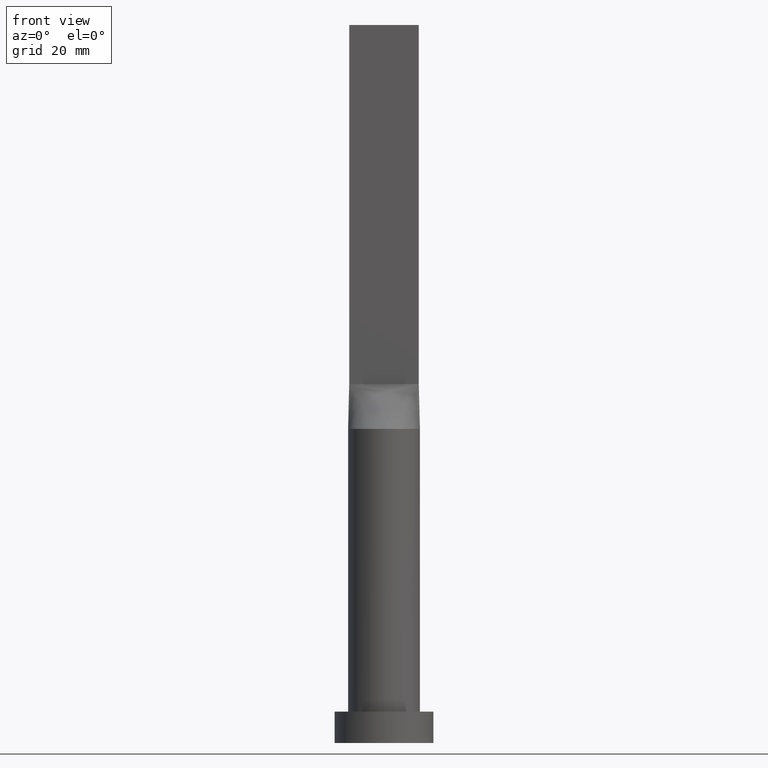
[diagram: clean part render]
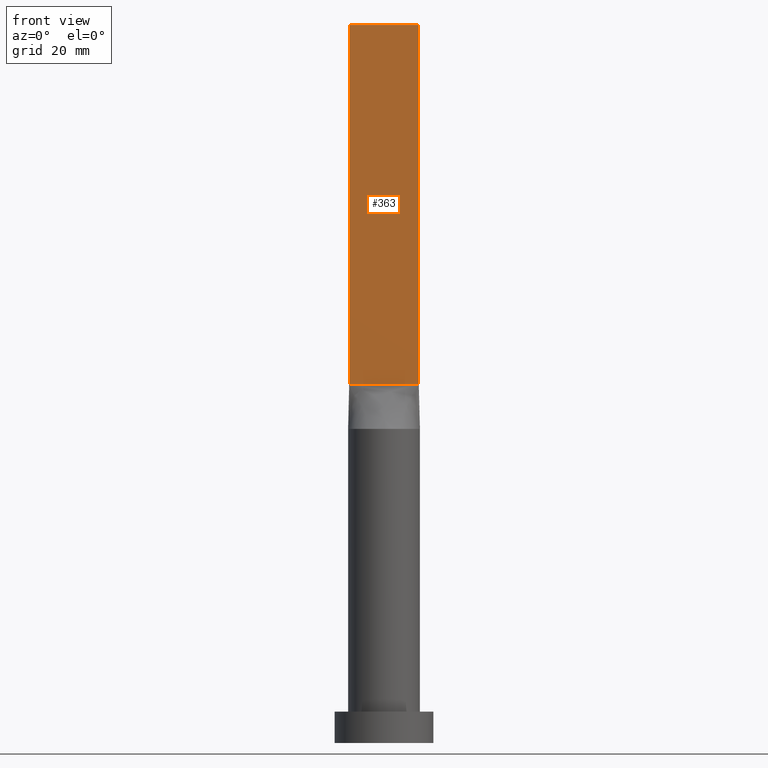
[diagram: same view with one face highlighted and labeled with its STEP entity id]
A machine part, front view. The second image highlights one B-rep face of the part: STEP entity #363.
In plain terms, the highlighted planar face has unit normal (0, 1, -0).
Its self-contained STEP definition (entity closure, byte-faithful):
#6 = VERTEX_POINT ( 'NONE', #138 ) ;
#31 = EDGE_CURVE ( 'NONE', #147, #6, #89, .T. ) ;
#38 = VECTOR ( 'NONE', #641, 1000.000000000000000 ) ;
#64 = CARTESIAN_POINT ( 'NONE',  ( 7.750000000000000000, -1.249999999999999778, 160.0000000000000000 ) ) ;
#87 = PLANE ( 'NONE',  #137 ) ;
#88 = ORIENTED_EDGE ( 'NONE', *, *, #31, .T. ) ;
#89 = LINE ( 'NONE', #580, #38 ) ;
#93 = DIRECTION ( 'NONE',  ( 5.595882180570345426E-17, 1.000000000000000000, -0.000000000000000000 ) ) ;
#120 = DIRECTION ( 'NONE',  ( 1.000000000000000000, -5.595882180570345426E-17, 0.000000000000000000 ) ) ;
#131 = DIRECTION ( 'NONE',  ( -0.000000000000000000, -0.000000000000000000, -1.000000000000000000 ) ) ;
#137 = AXIS2_PLACEMENT_3D ( 'NONE', #301, #93, #446 ) ;
#138 = CARTESIAN_POINT ( 'NONE',  ( -7.750000000000000000, -1.249999999999998890, 80.00000000000000000 ) ) ;
#147 = VERTEX_POINT ( 'NONE', #623 ) ;
#156 = LINE ( 'NONE', #312, #539 ) ;
#157 = ORIENTED_EDGE ( 'NONE', *, *, #582, .F. ) ;
#255 = CARTESIAN_POINT ( 'NONE',  ( 7.750000000000000000, -1.249999999999999778, 160.0000000000000000 ) ) ;
#287 = CARTESIAN_POINT ( 'NONE',  ( -7.750000000000000000, -1.249999999999998890, 160.0000000000000000 ) ) ;
#301 = CARTESIAN_POINT ( 'NONE',  ( -7.750000000000000000, -1.249999999999998890, 160.0000000000000000 ) ) ;
#312 = CARTESIAN_POINT ( 'NONE',  ( -7.750000000000000000, -1.249999999999998890, 80.00000000000000000 ) ) ;
#354 = EDGE_LOOP ( 'NONE', ( #559, #443, #157, #88 ) ) ;
#363 = ADVANCED_FACE ( 'NONE', ( #547 ), #87, .F. ) ;
#397 = EDGE_CURVE ( 'NONE', #6, #483, #156, .T. ) ;
#414 = DIRECTION ( 'NONE',  ( 1.000000000000000000, -5.595882180570345426E-17, 0.000000000000000000 ) ) ;
#426 = LINE ( 'NONE', #287, #474 ) ;
#430 = LINE ( 'NONE', #64, #613 ) ;
#443 = ORIENTED_EDGE ( 'NONE', *, *, #637, .F. ) ;
#446 = DIRECTION ( 'NONE',  ( -1.000000000000000000, 5.595882180570345426E-17, 0.000000000000000000 ) ) ;
#474 = VECTOR ( 'NONE', #120, 1000.000000000000000 ) ;
#483 = VERTEX_POINT ( 'NONE', #555 ) ;
#539 = VECTOR ( 'NONE', #414, 1000.000000000000000 ) ;
#547 = FACE_OUTER_BOUND ( 'NONE', #354, .T. ) ;
#553 = VERTEX_POINT ( 'NONE', #255 ) ;
#555 = CARTESIAN_POINT ( 'NONE',  ( 7.750000000000000000, -1.249999999999999778, 80.00000000000000000 ) ) ;
#559 = ORIENTED_EDGE ( 'NONE', *, *, #397, .T. ) ;
#580 = CARTESIAN_POINT ( 'NONE',  ( -7.750000000000000000, -1.249999999999998890, 160.0000000000000000 ) ) ;
#582 = EDGE_CURVE ( 'NONE', #147, #553, #426, .T. ) ;
#613 = VECTOR ( 'NONE', #131, 1000.000000000000000 ) ;
#623 = CARTESIAN_POINT ( 'NONE',  ( -7.750000000000000000, -1.249999999999998890, 160.0000000000000000 ) ) ;
#637 = EDGE_CURVE ( 'NONE', #553, #483, #430, .T. ) ;
#641 = DIRECTION ( 'NONE',  ( -0.000000000000000000, -0.000000000000000000, -1.000000000000000000 ) ) ;